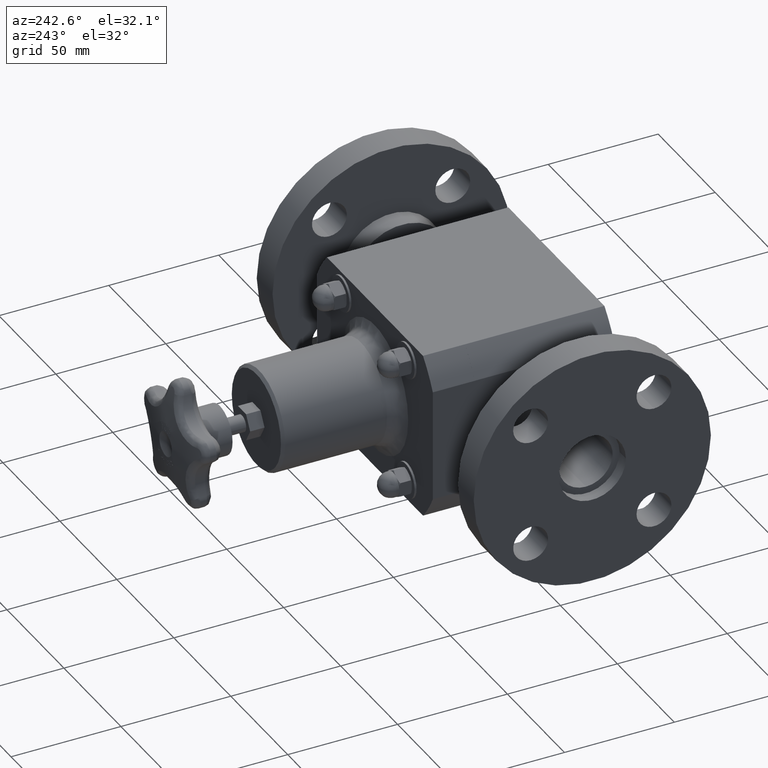
[diagram: clean part render]
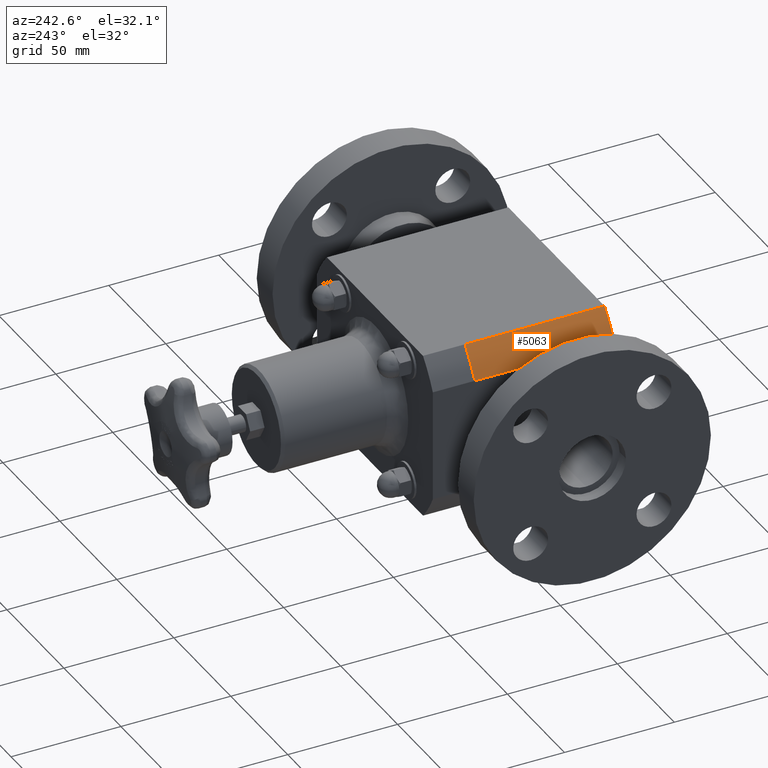
[diagram: same view with one face highlighted and labeled with its STEP entity id]
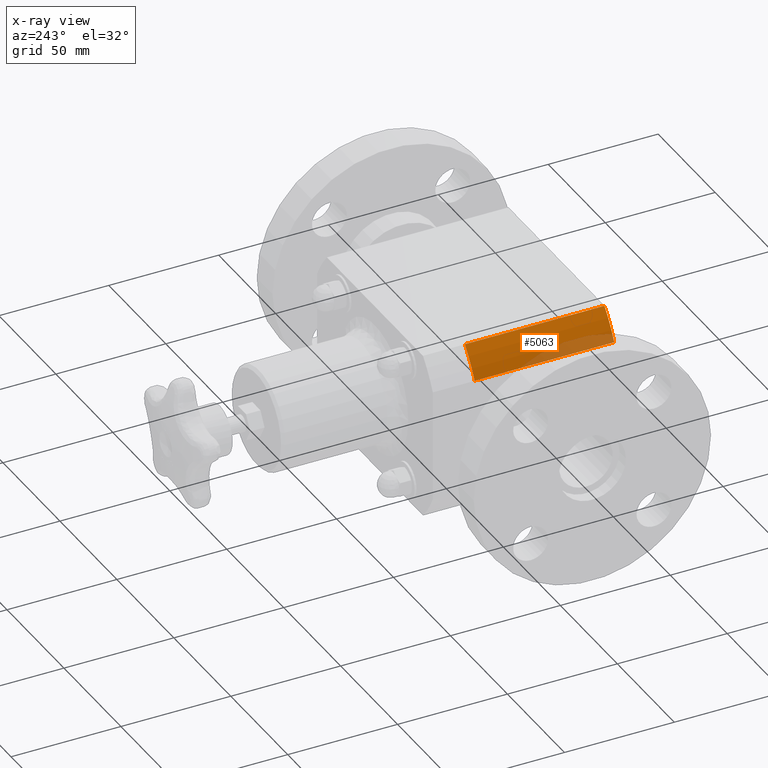
[diagram: x-ray of the same camera — body ghosted, the highlighted face saturated]
A machine part, auxiliary view. The second image highlights one B-rep face of the part: STEP entity #5063.
The next image is the same camera in x-ray: the body ghosted, the highlighted face saturated — about 18% of this face is hidden behind the body in this view.
In plain terms, the highlighted cylindrical surface (partial cylindrical patch) has radius 56.8452 mm, axis along (-0, 1, 0).
Its self-contained STEP definition (entity closure, byte-faithful):
#4541=CARTESIAN_POINT('',(-2.0,2.500000000000000,1.004312700308026));
#4542=VERTEX_POINT('',#4541);
#4549=CARTESIAN_POINT('',(-1.660916614403023,2.500000000000000,1.500000000000000));
#4550=VERTEX_POINT('',#4549);
#4551=CARTESIAN_POINT('',(-1.445224E-044,2.500000000000000,0.0));
#4552=DIRECTION('',(4.616735E-045,-1.000000000000000,-2.318323E-045));
#4553=DIRECTION('',(0.893655049151028,5.166127E-045,-0.448754557778385));
#4554=AXIS2_PLACEMENT_3D('',#4551,#4552,#4553);
#4555=CIRCLE('',#4554,2.238000000000000);
#4556=EDGE_CURVE('',#4550,#4542,#4555,.T.);
#4775=CARTESIAN_POINT('',(-2.0,-1.156179E-044,1.004312700308026));
#4776=VERTEX_POINT('',#4775);
#4783=CARTESIAN_POINT('',(-2.0,-1.156179E-044,1.004312700308026));
#4784=DIRECTION('',(0.0,1.0,0.0));
#4785=VECTOR('',#4784,2.500000000000000);
#4786=LINE('',#4783,#4785);
#4787=EDGE_CURVE('',#4776,#4542,#4786,.T.);
#5028=CARTESIAN_POINT('',(-1.660916614403023,-9.601586E-045,1.500000000000000));
#5029=VERTEX_POINT('',#5028);
#5030=CARTESIAN_POINT('',(-1.660916614403023,-9.601586E-045,1.500000000000000));
#5031=DIRECTION('',(0.0,1.0,0.0));
#5032=VECTOR('',#5031,2.500000000000000);
#5033=LINE('',#5030,#5032);
#5034=EDGE_CURVE('',#5029,#4550,#5033,.T.);
#5046=CARTESIAN_POINT('',(0.0,0.0,0.0));
#5047=DIRECTION('',(-5.780896E-045,1.0,0.0));
#5048=DIRECTION('',(0.893655049151028,5.166127E-045,-0.448754557778385));
#5049=AXIS2_PLACEMENT_3D('',#5046,#5047,#5048);
#5050=CYLINDRICAL_SURFACE('',#5049,2.238000000000000);
#5051=ORIENTED_EDGE('',*,*,#4556,.T.);
#5052=ORIENTED_EDGE('',*,*,#4787,.F.);
#5053=CARTESIAN_POINT('',(0.0,0.0,0.0));
#5054=DIRECTION('',(4.616735E-045,-1.000000000000000,-2.318323E-045));
#5055=DIRECTION('',(0.893655049151028,5.166127E-045,-0.448754557778385));
#5056=AXIS2_PLACEMENT_3D('',#5053,#5054,#5055);
#5057=CIRCLE('',#5056,2.238000000000000);
#5058=EDGE_CURVE('',#5029,#4776,#5057,.T.);
#5059=ORIENTED_EDGE('',*,*,#5058,.F.);
#5060=ORIENTED_EDGE('',*,*,#5034,.T.);
#5061=EDGE_LOOP('',(#5051,#5052,#5059,#5060));
#5062=FACE_OUTER_BOUND('',#5061,.T.);
#5063=ADVANCED_FACE('',(#5062),#5050,.T.);